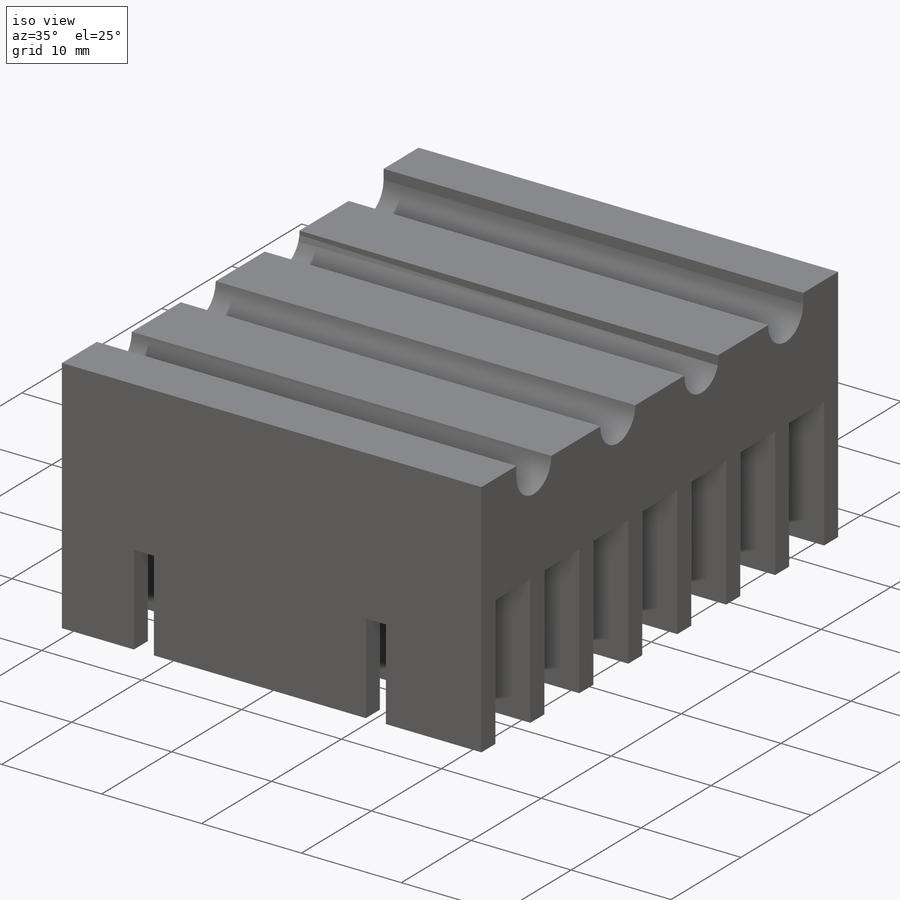
[diagram: iso view]
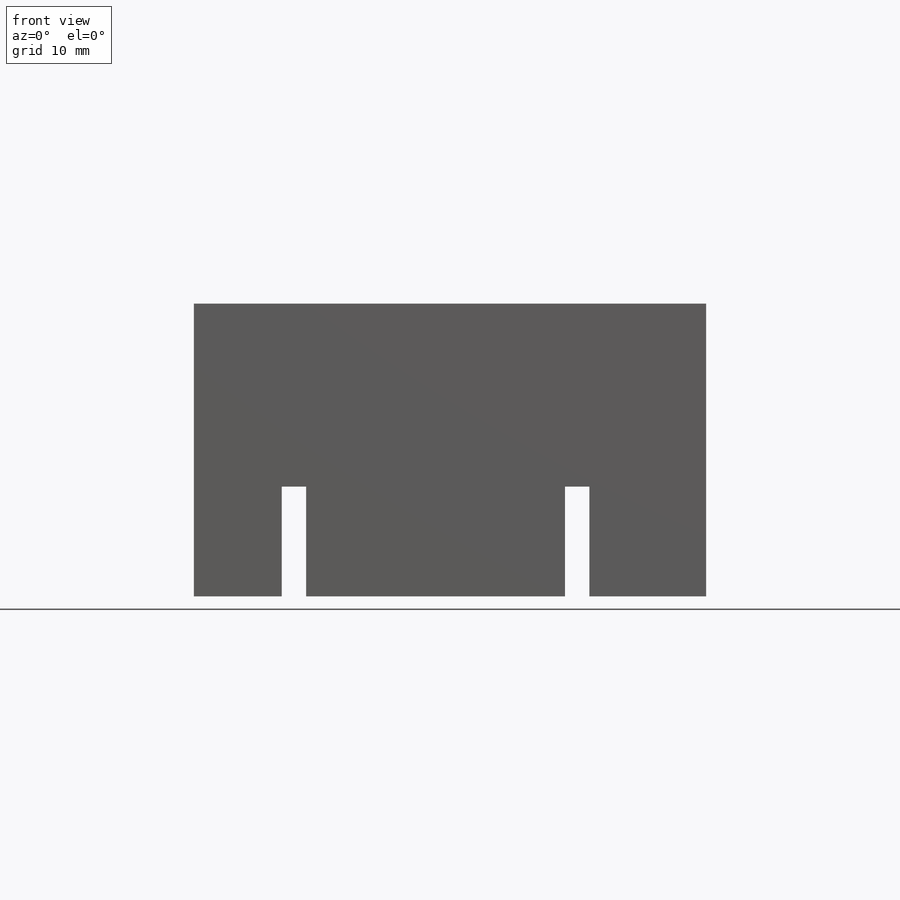
[diagram: front view]
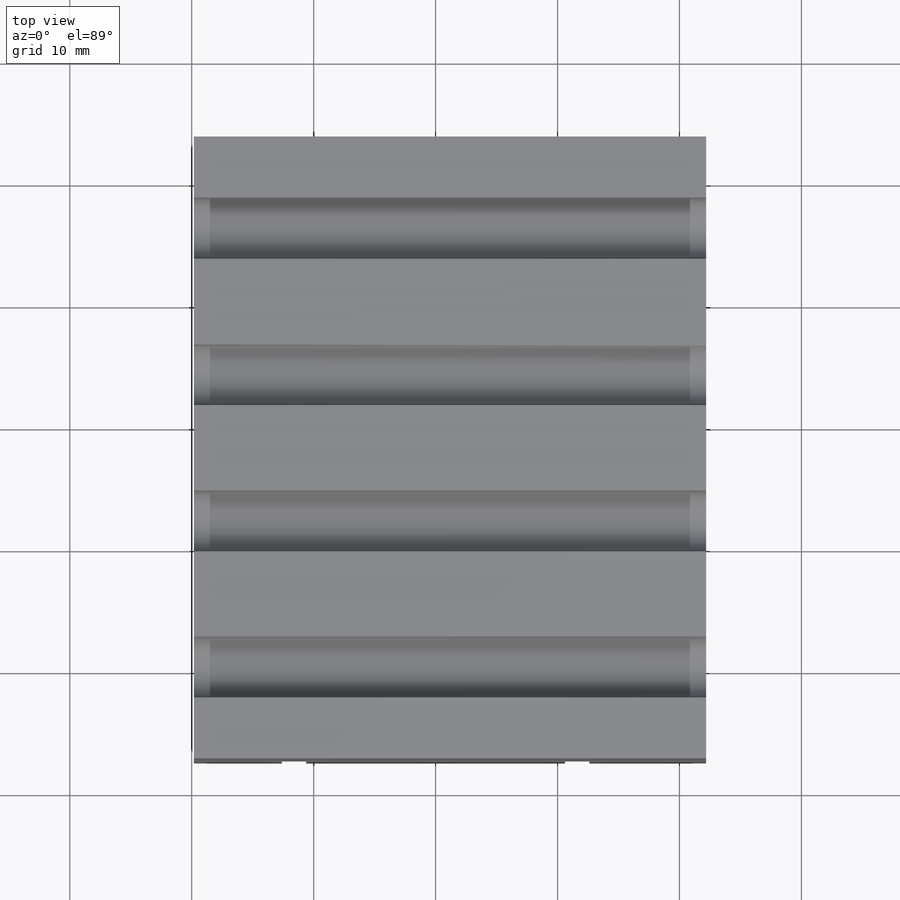
[diagram: top view]
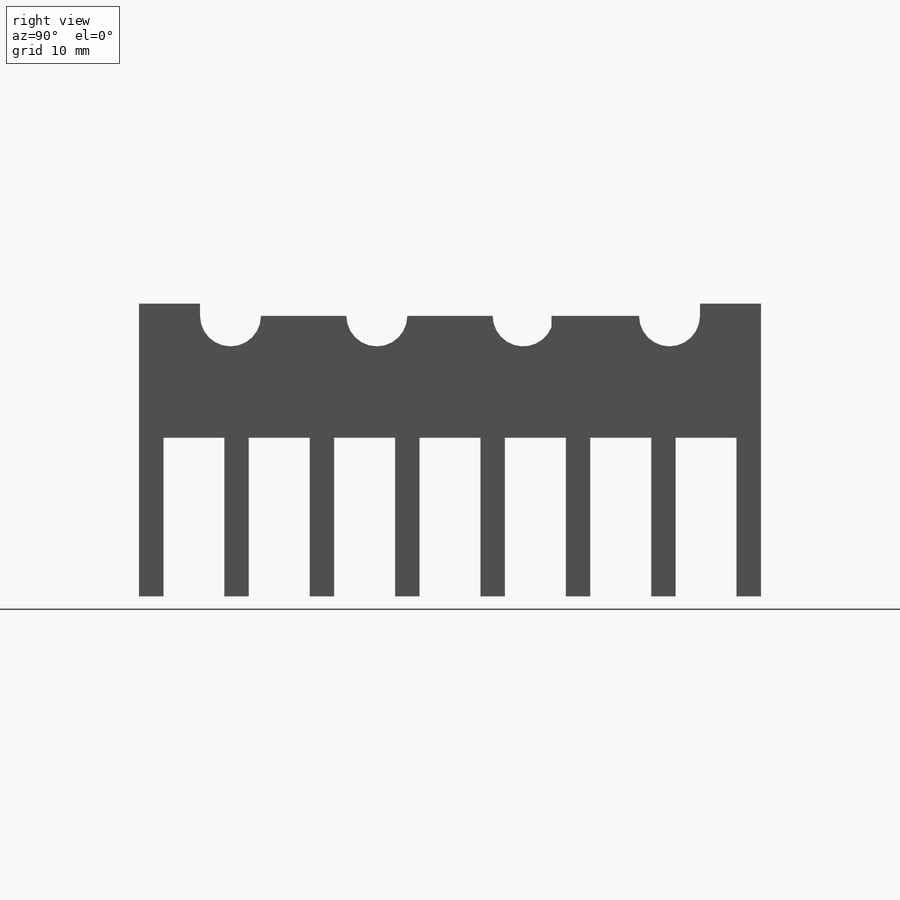
[diagram: right view]
SOLIDWORKS PART (.sldprt)
format: sldprt  version: not decoded by parser v0  size: 411,136 bytes
history: native  units: mm
features: sketch x4, extrude x3, material x1, pattern_linear x1, cut_extrude x1, plane x1 (+13 scaffold rows collapsed)
feature tree (24):
  scaffold x13  (default folders/planes/origin — collapsed)
  material  "Material <not specified>"
  sketch  "Sketch2"  dims[c1.D2=4.0mm c1.D4=1.0mm c1.D1=55.0mm c1.D3=10.0mm c2.D1=21.0mm]
  extrude  "Boss-Extrude1"  Depth=10mm
  sketch  "Sketch3"  dims[D1=5.0mm]
  extrude  "Boss-Extrude2"  [1 undecoded]
  sketch  "Sketch4"  dims[D1=2.0mm]
  extrude  "Boss-Extrude3"  [1 undecoded]
  pattern_linear  "LPattern1"  Count1=8 Count2=1 Spacing1=7mm Spacing2=10mm
  sketch  "Sketch5"  dims[D1=2.0mm]
  cut_extrude  "Cut-Extrude1"  [1 undecoded]
  plane  "Plane1"
decode coverage: 6 of 9 modeling features carry decoded parameters
note: 3 parameter values undecoded
summary: no parameter record found for 3 features
note: suppression state not decoded; provenance and decode notes live in map.json
